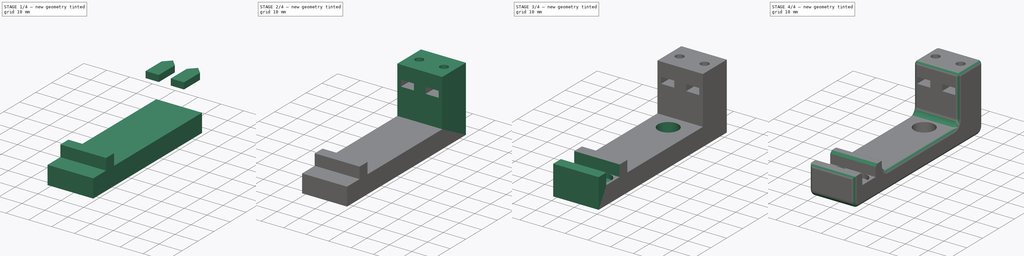
[diagram: build sequence overview — one tinted view per stage of 4, left to right]
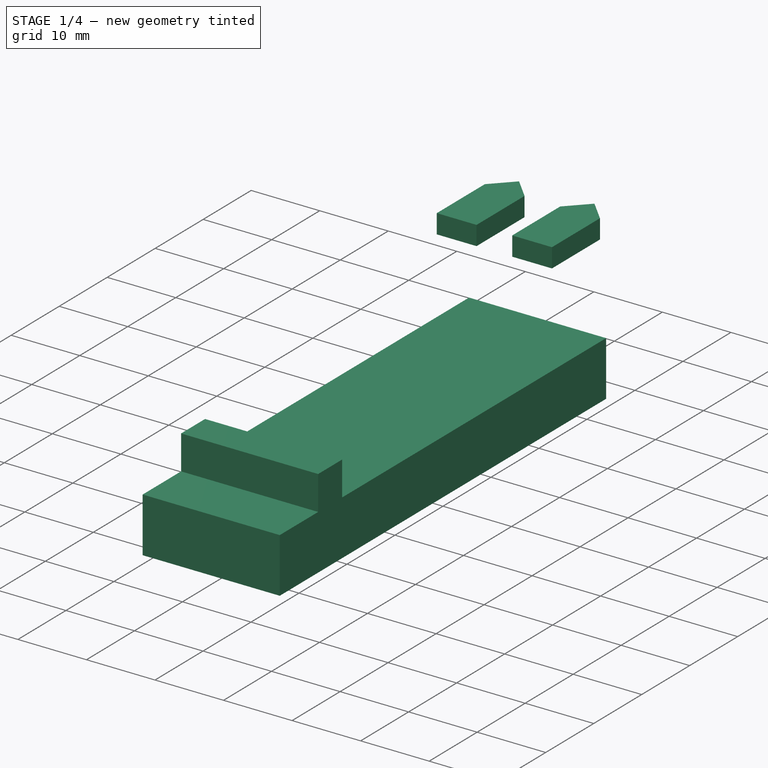
[diagram: stage 1 of 4 — iso view after this stage's code; geometry added in this stage tinted green]
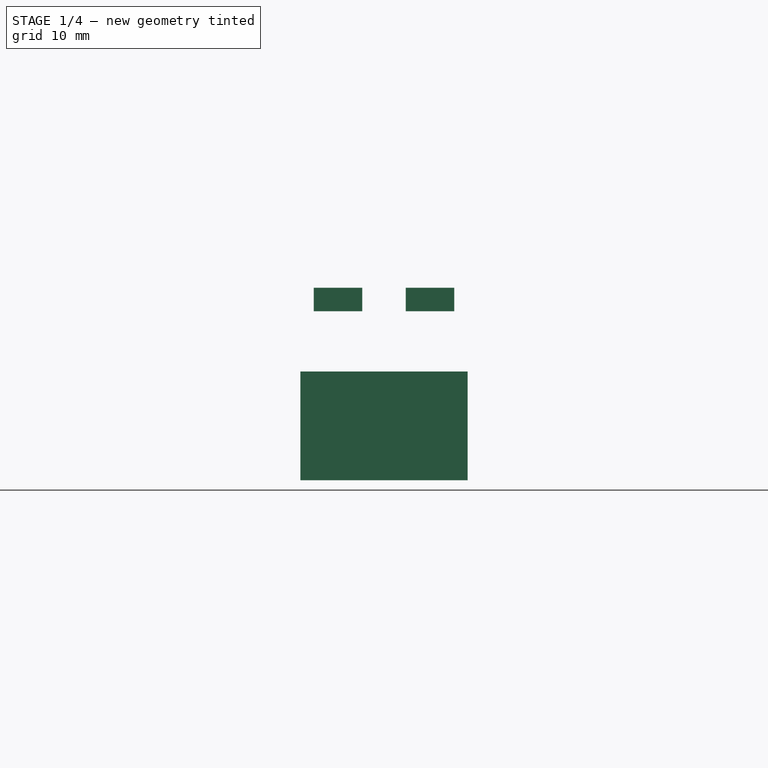
[diagram: stage 1 of 4 — front view after this stage's code; geometry added in this stage tinted green]
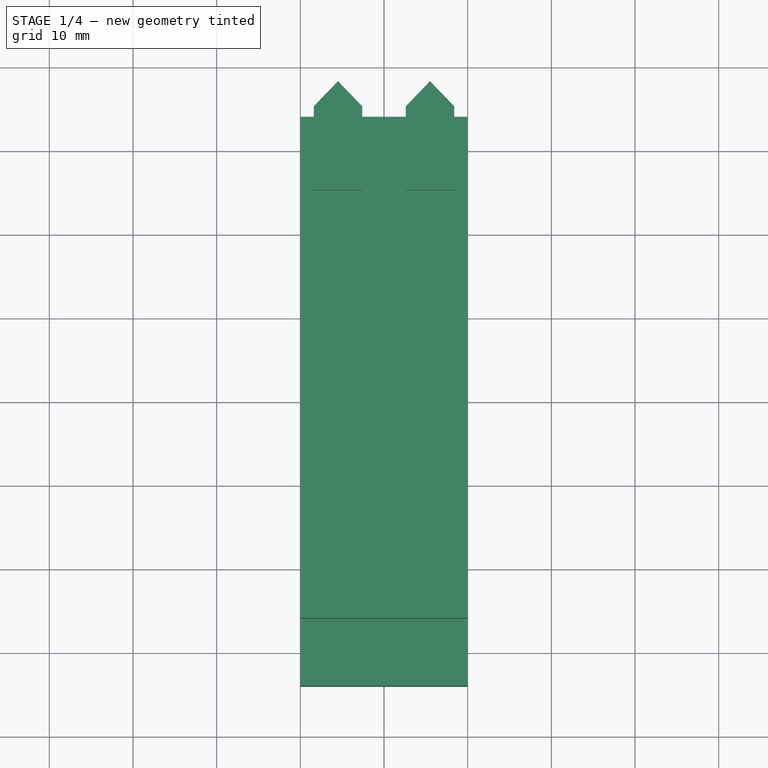
[diagram: stage 1 of 4 — top view after this stage's code; geometry added in this stage tinted green]
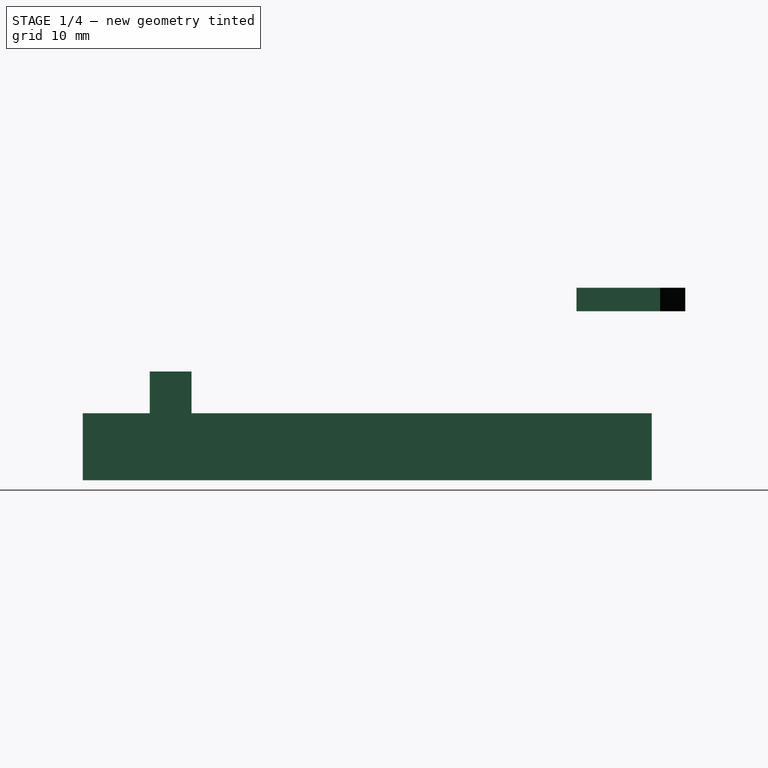
[diagram: stage 1 of 4 — right view after this stage's code; geometry added in this stage tinted green]
FCSTD DOCUMENT  (FreeCAD 0.16R6707 (Git))
Label: Sensor_Mount
License: Other
LicenseURL: http://ohwr.org/cernohl
objects: Sketcher::SketchObject×9, PartDesign::Pad×5, PartDesign::Pocket×4, PartDesign::Fillet×2, Part::Cut×1, PartDesign::Chamfer×1
note: 31 computed .brp shape members not serialized (recipe doc carries the construction recipe); baked Part::Feature solids carry a one-line shape summary decoded from their .brp

FEATURE [Sketcher::SketchObject] Sketch
  sketch-geometry (4):
    g0: LineSegment StartX=10 StartY=34 StartZ=0 EndX=-10 EndY=34 EndZ=0
    g1: LineSegment StartX=-10 StartY=34 StartZ=0 EndX=-10 EndY=-34 EndZ=0
    g2: LineSegment StartX=-10 StartY=-34 StartZ=0 EndX=10 EndY=-34 EndZ=0
    g3: LineSegment StartX=10 StartY=-34 StartZ=0 EndX=10 EndY=34 EndZ=0
  constraints (12):
    c: Coincident(g0,g1)
    c: Coincident(g1,g2)
    c: Coincident(g2,g3)
    c: Coincident(g3,g0)
    c: Horizontal(g0)
    c: Horizontal(g2)
    c: Vertical(g1)
    c: Vertical(g3)
    c: Symmetric(g1,g2,g-2)
    c: Symmetric(g2,g0,g-1)
    c: DistanceX(g2,g2) = 20
    c: DistanceY(g3,g3) = 68
FEATURE [PartDesign::Pad] Pad
  Length = 8
  Length2 = 100
  Sketch = -> Sketch
  Type = 0
FEATURE [Sketcher::SketchObject] Sketch276
  Placement = pos=(0,0,8) rot=(0,0,1;0rad)
  Support = -> Pad [Face6]
  sketch-geometry (4):
    g0: LineSegment StartX=-10 StartY=-26 StartZ=0 EndX=10 EndY=-26 EndZ=0
    g1: LineSegment StartX=10 StartY=-26 StartZ=0 EndX=10 EndY=-21 EndZ=0
    g2: LineSegment StartX=10 StartY=-21 StartZ=0 EndX=-10 EndY=-21 EndZ=0
    g3: LineSegment StartX=-10 StartY=-21 StartZ=0 EndX=-10 EndY=-26 EndZ=0
  constraints (12):
    c: Coincident(g0,g1)
    c: Coincident(g1,g2)
    c: Coincident(g2,g3)
    c: Coincident(g3,g0)
    c: Horizontal(g0)
    c: Horizontal(g2)
    c: Vertical(g1)
    c: Vertical(g3)
    c: DistanceY(g1,g1) = 5
    c: DistanceX(g2,g2) = 20
    c: Symmetric(g0,g0,g-2)
    c: DistanceY(g2,g-1) = 21
FEATURE [PartDesign::Pad] Pad001
  Length = 5
  Length2 = 100
  Sketch = -> Sketch276
  Type = 0
FEATURE [Sketcher::SketchObject] Sketch344
  Placement = pos=(0,0,23) rot=(0,0,1;0rad)
  sketch-geometry (13):
    g0: LineSegment StartX=-8.4 StartY=25 StartZ=0 EndX=-2.6 EndY=25 EndZ=0
    g1: LineSegment StartX=-2.6 StartY=25 StartZ=0 EndX=-2.6 EndY=35 EndZ=0
    g2: LineSegment StartX=-2.6 StartY=35 StartZ=0 EndX=-5.5 EndY=38 EndZ=0
    g3: LineSegment StartX=-5.5 StartY=38 StartZ=0 EndX=-8.4 EndY=35 EndZ=0
    g4: LineSegment StartX=-8.4 StartY=35 StartZ=0 EndX=-8.4 EndY=25 EndZ=0
    g5: LineSegment StartX=2.6 StartY=25 StartZ=0 EndX=8.4 EndY=25 EndZ=0
    g6: LineSegment StartX=8.4 StartY=25 StartZ=0 EndX=8.4 EndY=35 EndZ=0
    g7: LineSegment StartX=8.4 StartY=35 StartZ=0 EndX=5.5 EndY=38 EndZ=0
    g8: LineSegment StartX=5.5 StartY=38 StartZ=0 EndX=2.6 EndY=35 EndZ=0
    g9: LineSegment StartX=2.6 StartY=35 StartZ=0 EndX=2.6 EndY=25 EndZ=0
    g10: LineSegment [constr] StartX=-10 StartY=35 StartZ=0 EndX=10 EndY=35 EndZ=0
    g11: LineSegment [constr] StartX=-5.5 StartY=38 StartZ=0 EndX=-5.5 EndY=35 EndZ=0
    g12: LineSegment [constr] StartX=5.5 StartY=38 StartZ=0 EndX=5.5 EndY=35 EndZ=0
  constraints (39):
    c: Coincident(g0,g1)
    c: Coincident(g1,g2)
    c: Coincident(g2,g3)
    c: Coincident(g3,g4)
    c: Coincident(g4,g0)
    c: Horizontal(g5)
    c: Coincident(g5,g6)
    c: Coincident(g6,g7)
    c: Coincident(g7,g8)
    c: Coincident(g8,g9)
    c: Coincident(g9,g5)
    c: Vertical(g4)
    c: Vertical(g1)
    c: Vertical(g9)
    c: Vertical(g6)
    c: Horizontal(g0)
    c: Equal(g4,g1)
    c: Equal(g1,g9)
    c: Equal(g9,g6)
    c: Equal(g0,g5)
    c: DistanceX(g0,g0) = 5.8
    c: DistanceX(g10,g10) = 20
    c: Symmetric(g10,g10,g-2)
    c: PointOnObject(g3,g10)
    c: PointOnObject(g8,g10)
    c: PointOnObject(g11,g10)
    c: Vertical(g11)
    c: Coincident(g12,g7)
    c: PointOnObject(g12,g10)
    c: Vertical(g12)
    c: Symmetric(g3,g1,g11)
    c: Symmetric(g8,g6,g12)
    c: Coincident(g11,g2)
    c: Symmetric(g11,g12,g-2)
    c: DistanceX(g11,g12) = 11
    c: Equal(g11,g12)
    c: DistanceY(g11,g11) = 3
    c: DistanceY(g1,g1) = 10
    c: DistanceY(g-1,g5) = 25
FEATURE [PartDesign::Pad] Pad003
  Length = 2.8
  Length2 = 100
  Placement = pos=(0,0,23) rot=(0,0,1;0rad)
  Reversed = true
  Sketch = -> Sketch344
  Type = 0
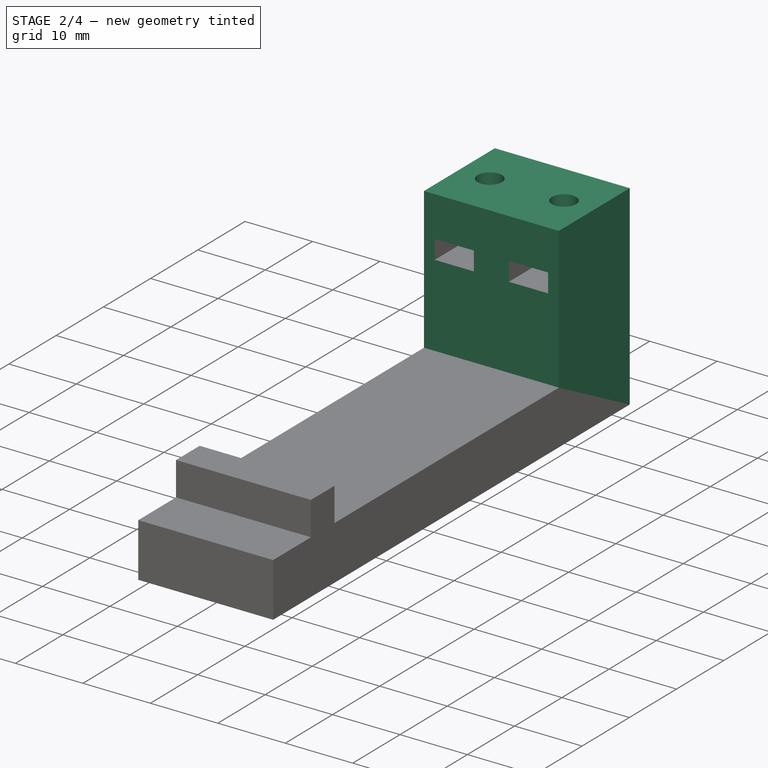
[diagram: stage 2 of 4 — iso view after this stage's code; geometry added in this stage tinted green]
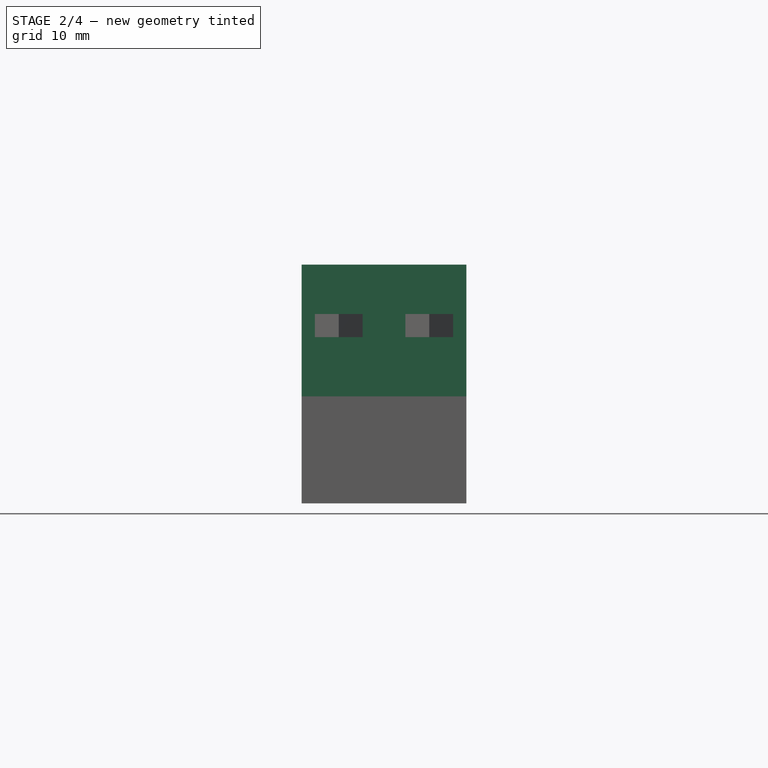
[diagram: stage 2 of 4 — front view after this stage's code; geometry added in this stage tinted green]
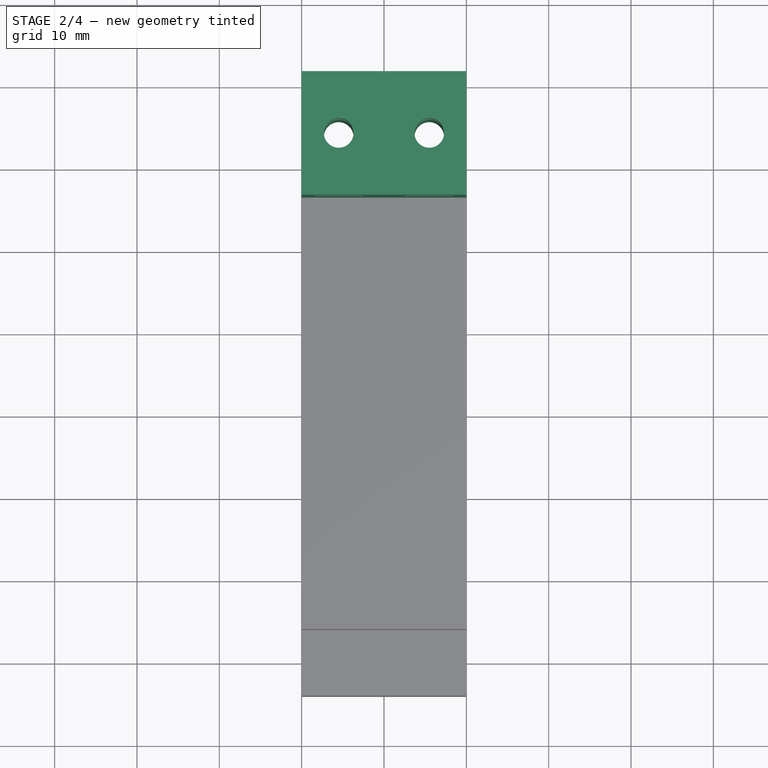
[diagram: stage 2 of 4 — top view after this stage's code; geometry added in this stage tinted green]
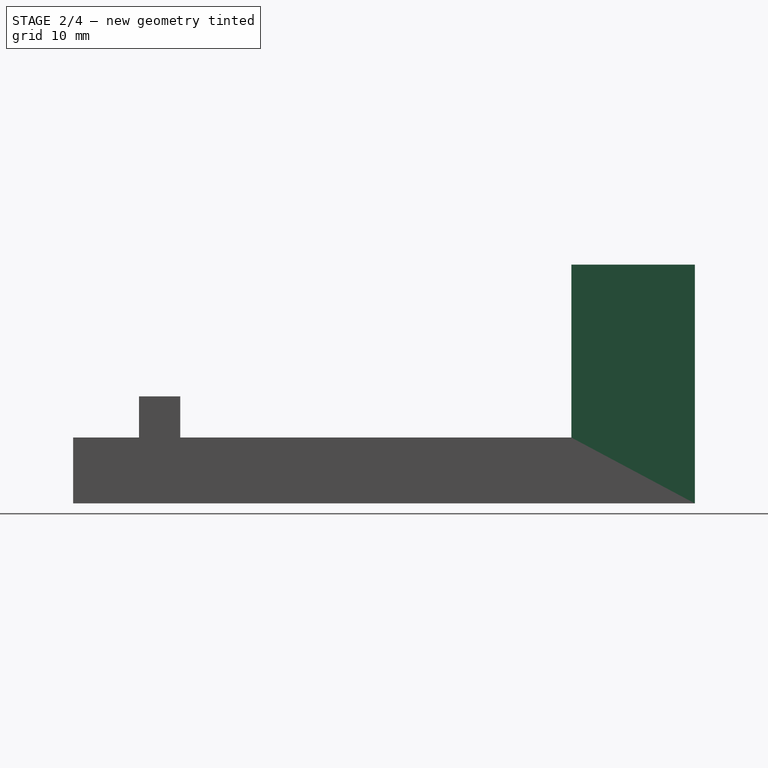
[diagram: stage 2 of 4 — right view after this stage's code; geometry added in this stage tinted green]
FEATURE [Sketcher::SketchObject] Sketch342
  Placement = pos=(0,34,0) rot=(0,0.707107,0.707107;3.14159rad)
  Support = -> Pad001 [Face1]
  sketch-geometry (4):
    g0: LineSegment StartX=-10 StartY=29 StartZ=0 EndX=10 EndY=29 EndZ=0
    g1: LineSegment StartX=10 StartY=29 StartZ=0 EndX=10 EndY=0 EndZ=0
    g2: LineSegment StartX=10 StartY=0 StartZ=0 EndX=-10 EndY=0 EndZ=0
    g3: LineSegment StartX=-10 StartY=0 StartZ=0 EndX=-10 EndY=29 EndZ=0
  constraints (12):
    c: Coincident(g0,g1)
    c: Coincident(g1,g2)
    c: Coincident(g2,g3)
    c: Coincident(g3,g0)
    c: Horizontal(g0)
    c: Horizontal(g2)
    c: Vertical(g1)
    c: Vertical(g3)
    c: DistanceY(g1,g1) = 29
    c: Symmetric(g2,g1,g-2)
    c: DistanceX(g2,g2) = 20
    c: PointOnObject(g1,g-1)
FEATURE [PartDesign::Pad] Pad002
  Length = 15
  Length2 = 100
  Midplane = true
  Sketch = -> Sketch342
  Type = 0
FEATURE [Sketcher::SketchObject] Sketch343
  ExternalGeometry = -> [Pad002]
  Placement = pos=(0,0,29) rot=(0,0,1;0rad)
  Support = -> Pad002 [Face8]
  sketch-geometry (3):
    g0: Circle CenterX=-5.5 CenterY=34 CenterZ=0 NormalX=0 NormalY=0 NormalZ=1 Radius=1.8
    g1: Circle CenterX=5.5 CenterY=34 CenterZ=0 NormalX=0 NormalY=0 NormalZ=1 Radius=1.8
    g2: LineSegment [constr] StartX=-10 StartY=34 StartZ=0 EndX=10 EndY=34 EndZ=0
  constraints (8):
    c: Radius(g1) = 1.8
    c: Equal(g1,g0)
    c: Symmetric(g0,g1,g-2)
    c: DistanceX(g0,g1) = 11
    c: Symmetric(g2,g2,g-2)
    c: DistanceX(g2,g2) = 20
    c: Symmetric(g-4,g-3,g2)
    c: PointOnObject(g1,g2)
FEATURE [PartDesign::Pocket] Pocket
  Length = 5
  Sketch = -> Sketch343
  Type = 1
FEATURE [Part::Cut] Cut
  Base = -> Pocket
  Tool = -> Pad003
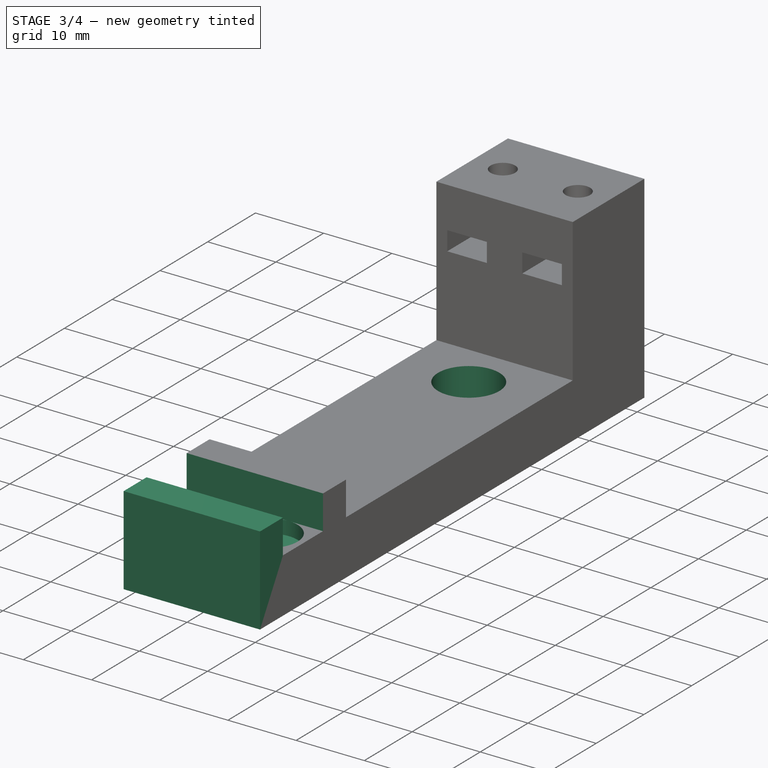
[diagram: stage 3 of 4 — iso view after this stage's code; geometry added in this stage tinted green]
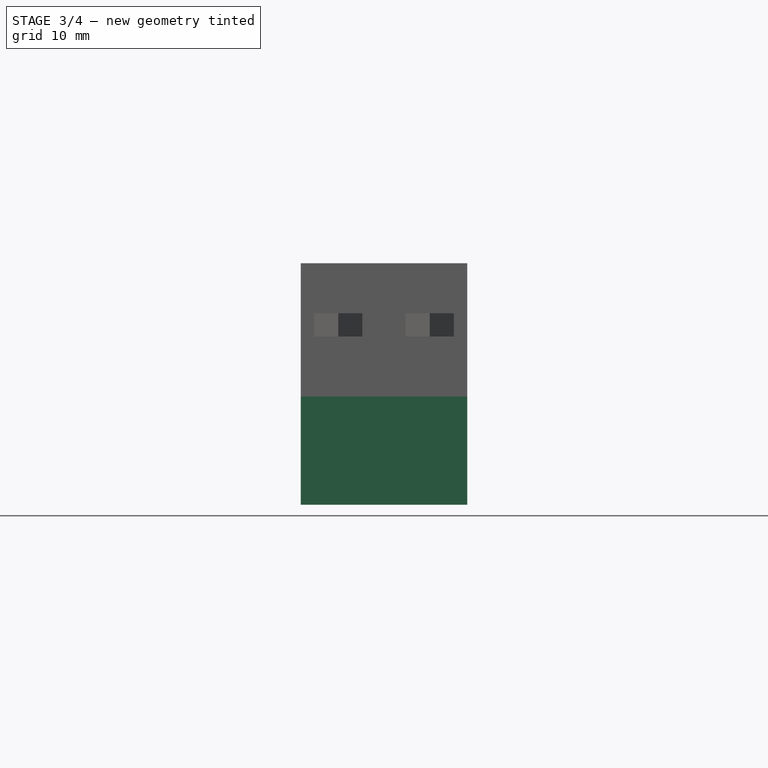
[diagram: stage 3 of 4 — front view after this stage's code; geometry added in this stage tinted green]
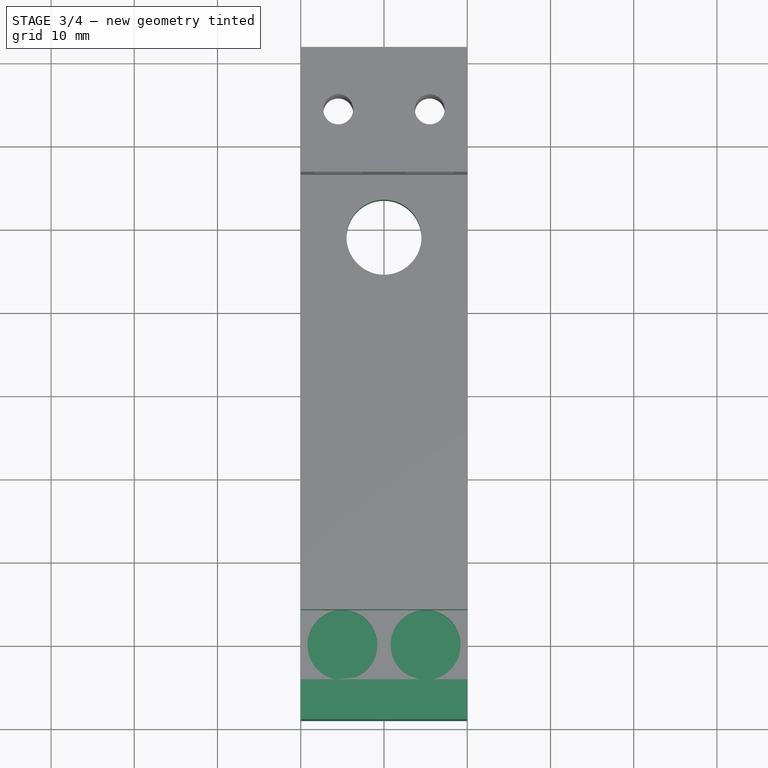
[diagram: stage 3 of 4 — top view after this stage's code; geometry added in this stage tinted green]
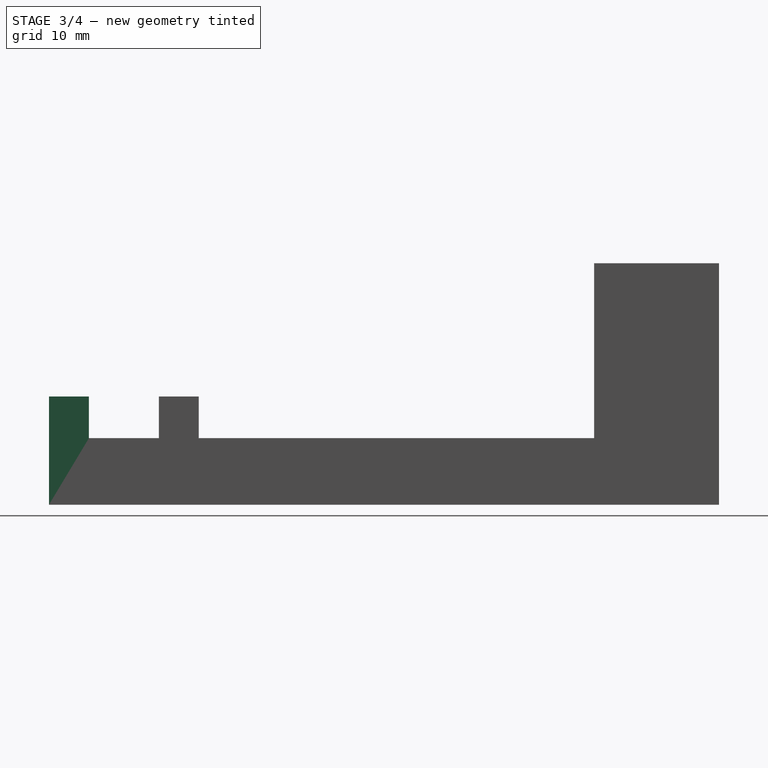
[diagram: stage 3 of 4 — right view after this stage's code; geometry added in this stage tinted green]
FEATURE [Sketcher::SketchObject] Sketch347
  Placement = pos=(0,-34,0) rot=(1,0,0;1.5708rad)
  Support = -> Cut [Face1]
  sketch-geometry (4):
    g0: LineSegment StartX=-10 StartY=0 StartZ=0 EndX=10 EndY=0 EndZ=0
    g1: LineSegment StartX=10 StartY=0 StartZ=0 EndX=10 EndY=13 EndZ=0
    g2: LineSegment StartX=10 StartY=13 StartZ=0 EndX=-10 EndY=13 EndZ=0
    g3: LineSegment StartX=-10 StartY=13 StartZ=0 EndX=-10 EndY=0 EndZ=0
  constraints (12):
    c: Coincident(g0,g1)
    c: Coincident(g1,g2)
    c: Coincident(g2,g3)
    c: Coincident(g3,g0)
    c: Horizontal(g0)
    c: Horizontal(g2)
    c: Vertical(g1)
    c: Vertical(g3)
    c: PointOnObject(g0,g-1)
    c: Symmetric(g0,g0,g-2)
    c: DistanceX(g0,g0) = 20
    c: DistanceY(g3,g3) = 13
FEATURE [PartDesign::Pad] Pad004
  Length = 5
  Length2 = 100
  Sketch = -> Sketch347
  Type = 0
FEATURE [Sketcher::SketchObject] Sketch348
  ExternalGeometry = -> [Pad004]
  Placement = pos=(0,0,13) rot=(0,0,1;0rad)
  Support = -> Pad004 [Face6]
  sketch-geometry (5):
    g0: LineSegment [constr] StartX=-10 StartY=-30 StartZ=0 EndX=10 EndY=-30 EndZ=0
    g1: LineSegment StartX=-10 StartY=-25.8 StartZ=0 EndX=10 EndY=-25.8 EndZ=0
    g2: LineSegment StartX=10 StartY=-25.8 StartZ=0 EndX=10 EndY=-34.2 EndZ=0
    g3: LineSegment StartX=10 StartY=-34.2 StartZ=0 EndX=-10 EndY=-34.2 EndZ=0
    g4: LineSegment StartX=-10 StartY=-34.2 StartZ=0 EndX=-10 EndY=-25.8 EndZ=0
  constraints (15):
    c: DistanceY(g0,g-3) = 4
    c: Symmetric(g0,g0,g-2)
    c: DistanceX(g0,g0) = 20
    c: Coincident(g1,g2)
    c: Coincident(g2,g3)
    c: Coincident(g3,g4)
    c: Coincident(g4,g1)
    c: Horizontal(g1)
    c: Horizontal(g3)
    c: Vertical(g2)
    c: Vertical(g4)
    c: PointOnObject(g0,g4)
    c: PointOnObject(g0,g2)
    c: Symmetric(g2,g1,g0)
    c: DistanceY(g4,g4) = 8.4
FEATURE [PartDesign::Pocket] Pocket001
  Length = 5
  Sketch = -> Sketch348
  Type = 0
FEATURE [Sketcher::SketchObject] Sketch345
  ExternalGeometry = -> [Cut]
  Placement = pos=(0,0,13) rot=(0,0,1;0rad)
  Support = -> Pocket001 [Face9]
  sketch-geometry (3):
    g0: Circle CenterX=-5 CenterY=-30 CenterZ=0 NormalX=0 NormalY=0 NormalZ=1 Radius=4.2
    g1: Circle CenterX=5 CenterY=-30 CenterZ=0 NormalX=0 NormalY=0 NormalZ=1 Radius=4.2
    g2: LineSegment [constr] StartX=-10 StartY=-30 StartZ=0 EndX=10 EndY=-30 EndZ=0
  constraints (9):
    c: Symmetric(g0,g1,g-2)
    c: Radius(g0) = 4.2
    c: Equal(g0,g1)
    c: DistanceX(g0,g1) = 10
    c: Horizontal(g2)
    c: DistanceX(g2,g2) = 20
    c: Symmetric(g2,g2,g-2)
    c: DistanceY(g-3,g2) = 4
    c: PointOnObject(g1,g2)
FEATURE [PartDesign::Pocket] Pocket002
  Length = 7
  Sketch = -> Sketch345
  Type = 0
FEATURE [Sketcher::SketchObject] Sketch346
  Placement = pos=(0,0,8) rot=(0,0,1;0rad)
  Support = -> Pocket002 [Face11]
  sketch-geometry (1):
    g0: Circle CenterX=0 CenterY=19 CenterZ=0 NormalX=0 NormalY=0 NormalZ=1 Radius=4.5
  constraints (3):
    c: PointOnObject(g0,g-2)
    c: Radius(g0) = 4.5
    c: DistanceY(g-1,g0) = 19
FEATURE [PartDesign::Pocket] Pocket003
  Length = 5
  Sketch = -> Sketch346
  Type = 1
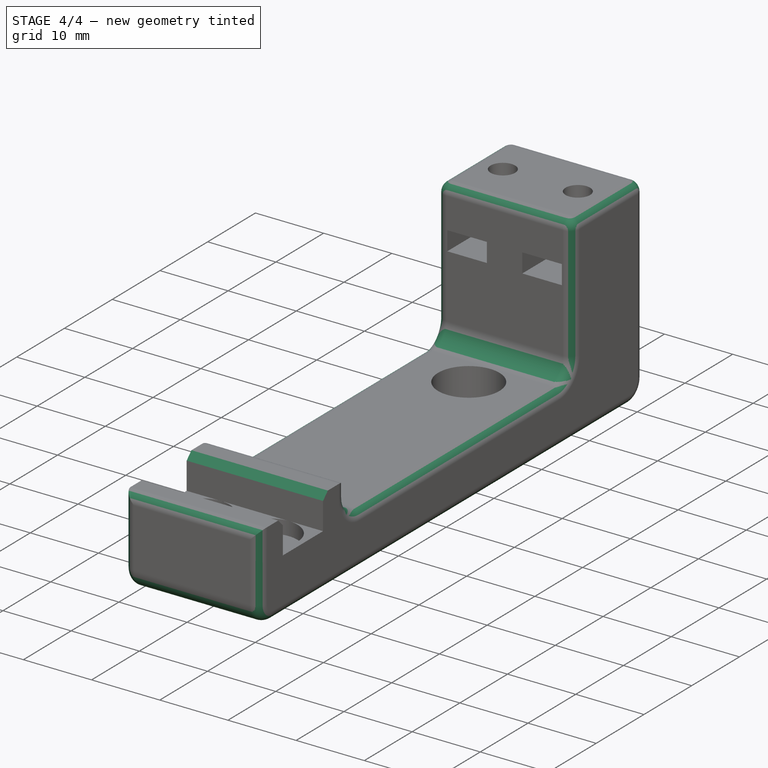
[diagram: stage 4 of 4 — iso view after this stage's code; geometry added in this stage tinted green]
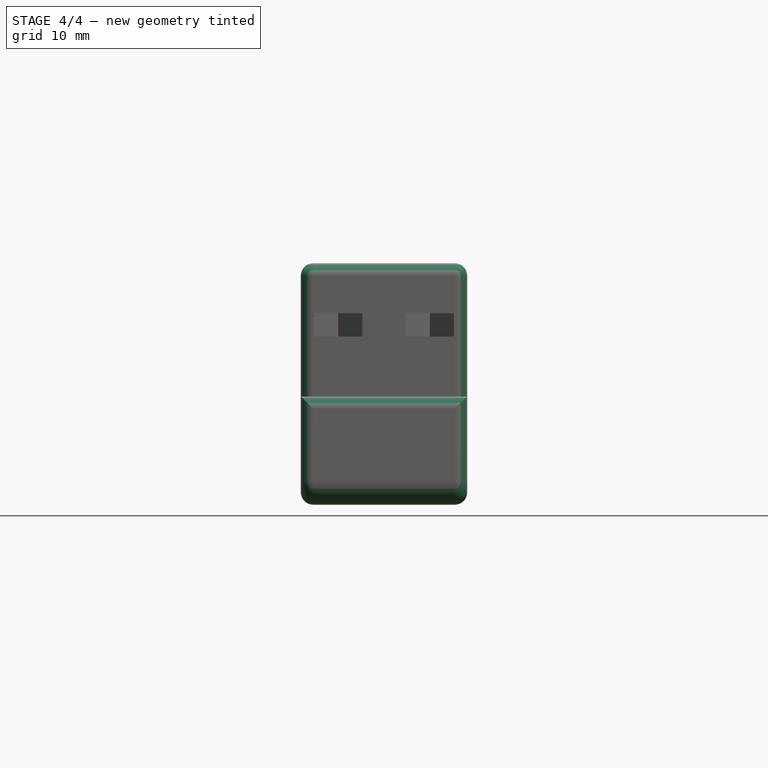
[diagram: stage 4 of 4 — front view after this stage's code; geometry added in this stage tinted green]
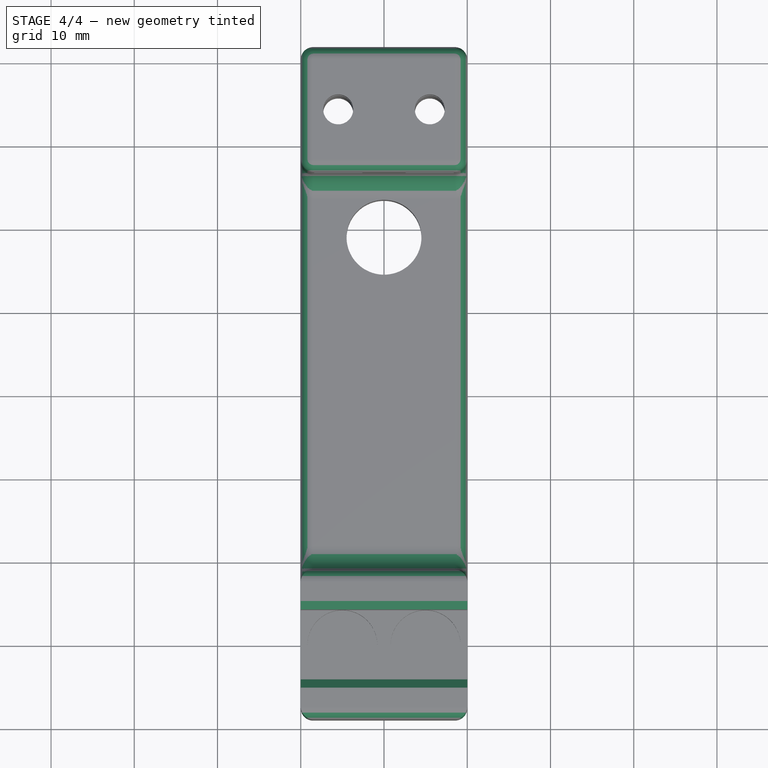
[diagram: stage 4 of 4 — top view after this stage's code; geometry added in this stage tinted green]
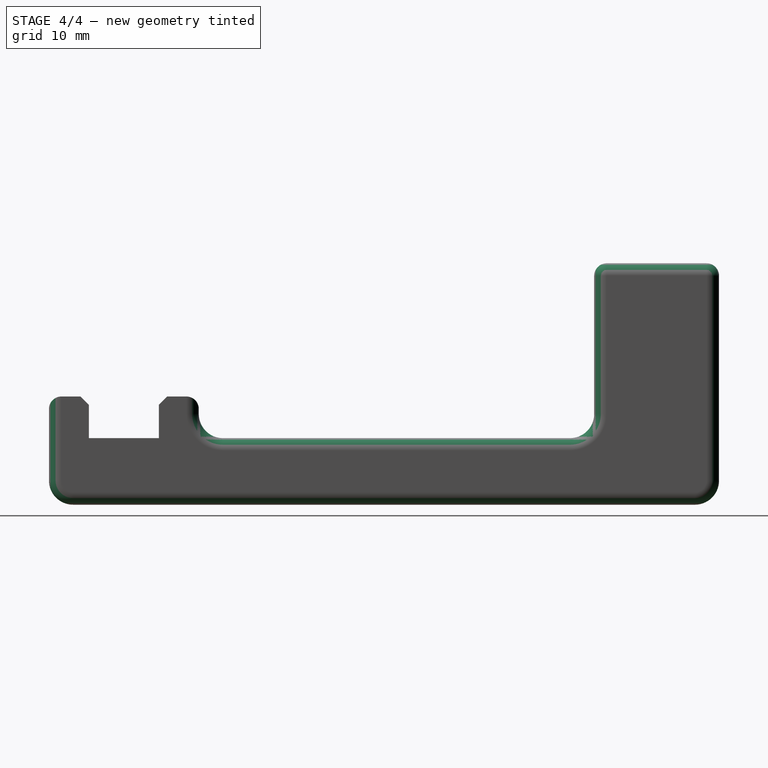
[diagram: stage 4 of 4 — right view after this stage's code; geometry added in this stage tinted green]
FEATURE [PartDesign::Chamfer] Chamfer
  Base = -> Pocket003 [Edge52,Edge47]
  Size = 1
FEATURE [PartDesign::Fillet] Fillet
  Base = -> Chamfer [Edge46,Edge26,Edge20,Edge58]
  Radius = 2.9
FEATURE [PartDesign::Fillet] Fillet001
  Base = -> Fillet [Edge21,Edge1,Edge19,Edge65,Edge4,Edge8,Edge12,Edge16,Edge68,Edge44,Edge10,Edge39,Edge40,Edge43,Edge27]
  Radius = 1.5
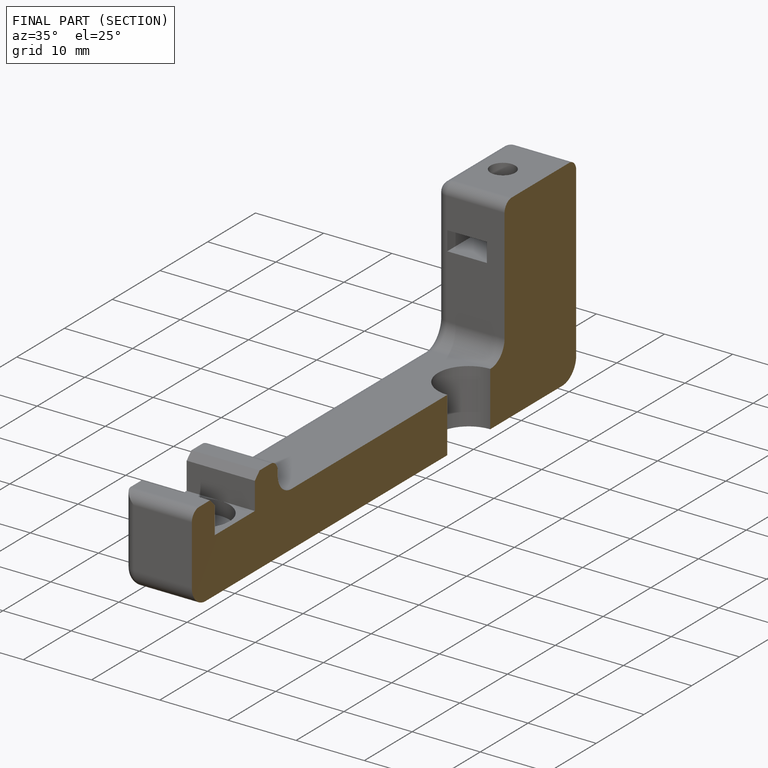
[diagram: finished part — half-section view (interior)]
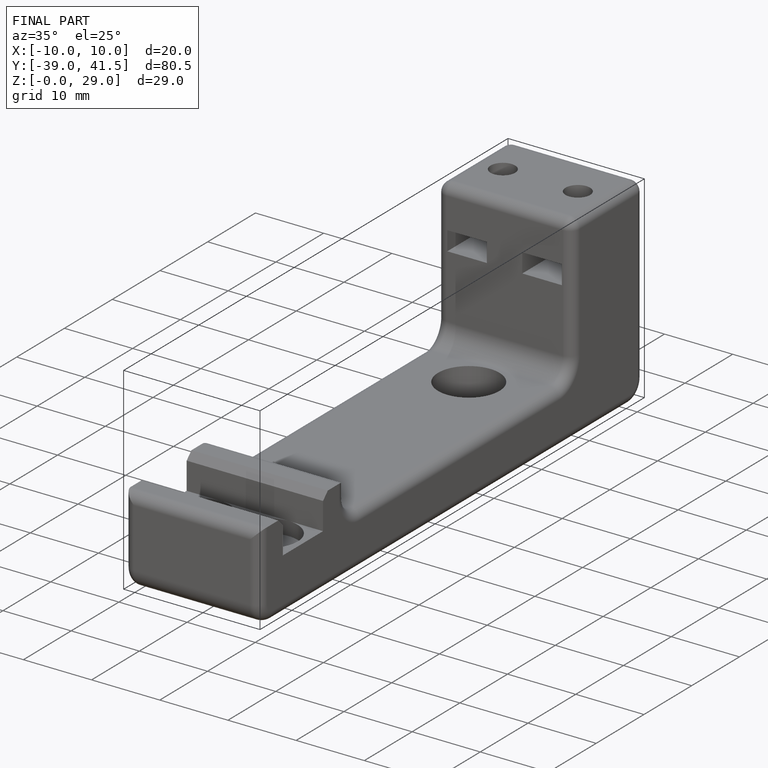
[diagram: finished part — iso view with bounding-box wireframe]
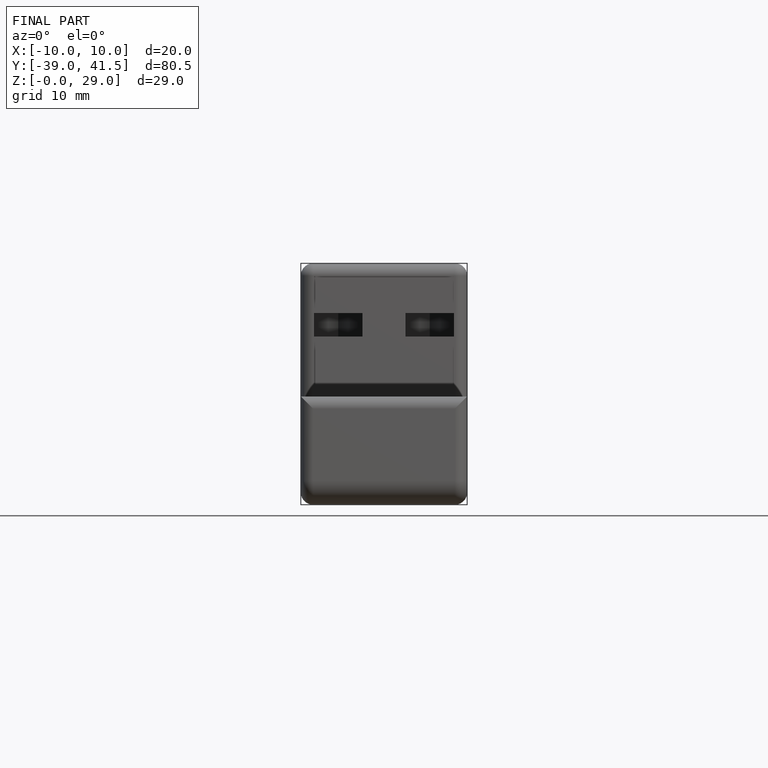
[diagram: finished part — front view with bounding-box wireframe]
